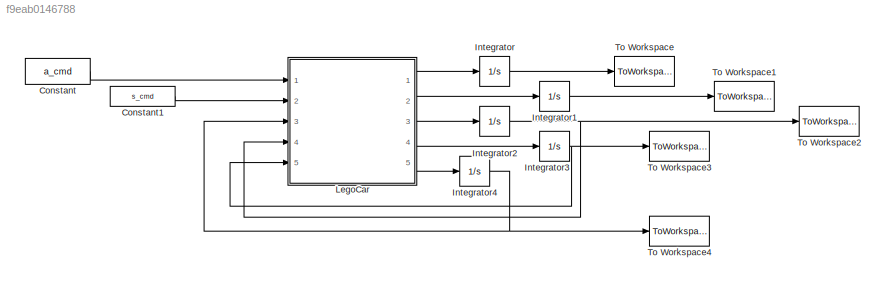
MODEL slx_f9eab0146788
KIND model
CONFIG AbsTol = auto
CONFIG EnableMultiTasking = on
CONFIG FixedStep = Ts
CONFIG MaxStep = auto
CONFIG MinStep = auto
CONFIG RelTol = 1e-5
CONFIG SampleTimeConstraint = Unconstrained
CONFIG Solver = FixedStepAuto
CONFIG SolverName = FixedStepAuto
CONFIG StartTime = 0.0
CONFIG StopTime = 1
BLOCK [Constant] Constant
  Value = a_cmd
BLOCK [Constant] Constant1
  Value = s_cmd
BLOCK [Integrator] Integrator
  InitialCondition = x_car0
  Ports = [1, 1]
BLOCK [Integrator] Integrator1
  InitialCondition = y_car0
  Ports = [1, 1]
BLOCK [Integrator] Integrator2
  InitialCondition = psi0
  Ports = [1, 1]
BLOCK [Integrator] Integrator3
  InitialCondition = v_car0
  Ports = [1, 1]
BLOCK [Integrator] Integrator4
  InitialCondition = alpha_car0
  Ports = [1, 1]
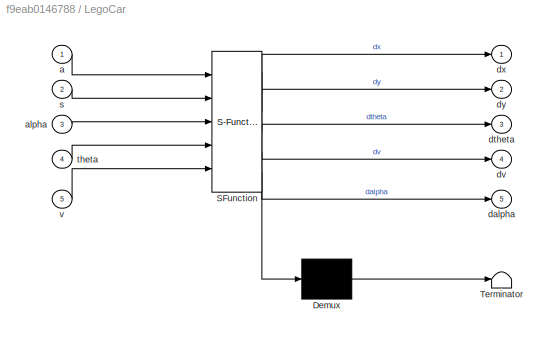
BLOCK [SubSystem] LegoCar
  ErrorFcn = Stateflow.Translate.translate
  PermitHierarchicalResolution = ExplicitOnly
  Ports = [5, 5]
  RequestExecContextInheritance = off
  SFBlockType = MATLAB Function
  TreatAsAtomicUnit = on
BLOCK [Demux] LegoCar/ Demux 
  Outputs = 1
  Ports = [1, 1]
BLOCK [S-Function] LegoCar/ SFunction 
  EnableBusSupport = on
  FunctionName = sf_sfun
  PortCounts = [5 6]
  Ports = [5, 6]
  SFcnIsStateOwnerBlock = off
  SFunctionDeploymentMode = off
  Tag = Stateflow S-Function bic_4 2
BLOCK [Terminator] LegoCar/ Terminator 
BLOCK [Inport] LegoCar/a
  IconDisplay = Port number
BLOCK [Inport] LegoCar/alpha
  IconDisplay = Port number
  Port = 3
BLOCK [Outport] LegoCar/dalpha
  IconDisplay = Port number
  Port = 5
BLOCK [Outport] LegoCar/dtheta
  IconDisplay = Port number
  Port = 3
BLOCK [Outport] LegoCar/dv
  IconDisplay = Port number
  Port = 4
BLOCK [Outport] LegoCar/dx
  IconDisplay = Port number
BLOCK [Outport] LegoCar/dy
  IconDisplay = Port number
  Port = 2
BLOCK [Inport] LegoCar/s
  IconDisplay = Port number
  Port = 2
BLOCK [Inport] LegoCar/theta
  IconDisplay = Port number
  Port = 4
BLOCK [Inport] LegoCar/v
  IconDisplay = Port number
  Port = 5
BLOCK [ToWorkspace] To Workspace
  FixptAsFi = on
  MaxDataPoints = inf
  Ports = [1]
  SampleTime = -1
  Save2DSignal = 3-D array (concatenate along third dimension)
  SaveFormat = Timeseries
  VariableName = x_state
BLOCK [ToWorkspace] To Workspace1
  FixptAsFi = on
  MaxDataPoints = inf
  Ports = [1]
  SampleTime = -1
  Save2DSignal = 3-D array (concatenate along third dimension)
  SaveFormat = Timeseries
  VariableName = y_state
BLOCK [ToWorkspace] To Workspace2
  FixptAsFi = on
  MaxDataPoints = inf
  Ports = [1]
  SampleTime = -1
  Save2DSignal = 3-D array (concatenate along third dimension)
  SaveFormat = Timeseries
  VariableName = psi_state
BLOCK [ToWorkspace] To Workspace3
  FixptAsFi = on
  MaxDataPoints = inf
  Ports = [1]
  SampleTime = -1
  Save2DSignal = 3-D array (concatenate along third dimension)
  SaveFormat = Timeseries
  VariableName = v_state
BLOCK [ToWorkspace] To Workspace4
  FixptAsFi = on
  MaxDataPoints = inf
  Ports = [1]
  SampleTime = -1
  Save2DSignal = 3-D array (concatenate along third dimension)
  SaveFormat = Timeseries
  VariableName = alpha_state
LINE Constant1:1 -> LegoCar:2
LINE Constant:1 -> LegoCar:1
LINE Integrator1:1 -> To Workspace1:1
NET Integrator2:1 -> LegoCar:4, To Workspace2:1
NET Integrator3:1 -> LegoCar:5, To Workspace3:1
NET Integrator4:1 -> LegoCar:3, To Workspace4:1
LINE Integrator:1 -> To Workspace:1
LINE LegoCar:1 -> Integrator:1
LINE LegoCar:2 -> Integrator1:1
LINE LegoCar:3 -> Integrator2:1
LINE LegoCar:4 -> Integrator3:1
LINE LegoCar:5 -> Integrator4:1
note: NET lines group one-source signal fan-out (src -> all destinations, sorted); 1:1 wires keep LINE
CHART LegoCar states=1 transitions=1
  STATE_LABEL 'eML_blk_kernel()'
  STATE_LABEL 'SCRIPT:\nfunction [dx,dy,dtheta,dv,dalpha] = fcn(a,s,alpha,theta,v)\n% this model add the steering angle state\n%[aplha] current steering wheel angle\n%[theta] heading angle\n\nlr = 1.7;\nlf = 1.5;\nbeta = atan(lr/(lr+lf)*tan(alpha));\ndx = v*cos(theta+beta);\ndy = v*sin(theta+beta);\ndtheta = v/lr*tan(beta);\ndv = a;\ndalpha = s;\n\n'
